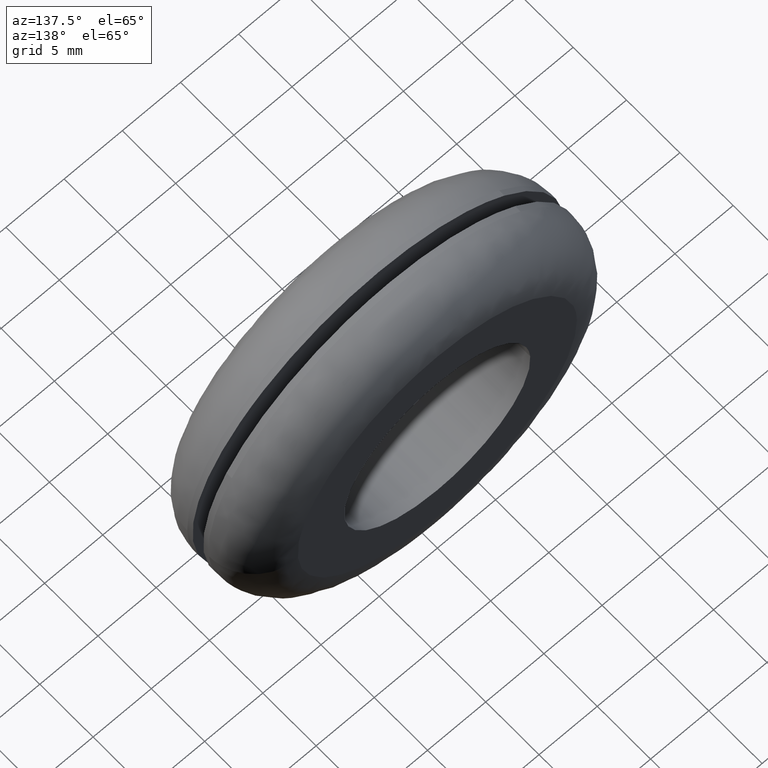
[diagram: clean part render]
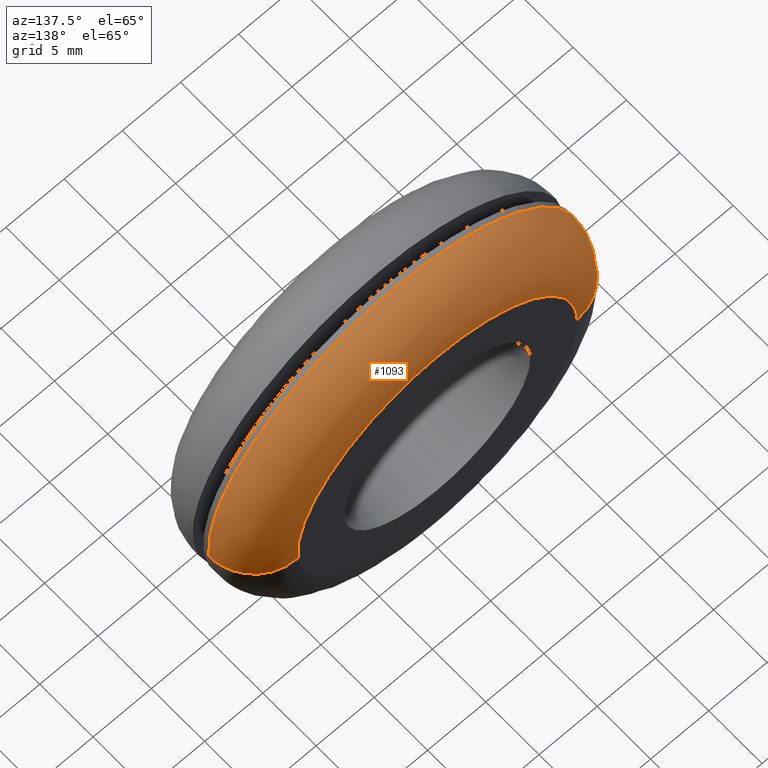
[diagram: same view with one face highlighted and labeled with its STEP entity id]
A machine part, auxiliary view. The second image highlights one B-rep face of the part: STEP entity #1093.
In plain terms, the highlighted face is a freeform B-spline surface patch.
Its self-contained STEP definition (entity closure, byte-faithful):
#464=CARTESIAN_POINT('',(13.999144271823431,6.000000000000282,7.747513127234091));
#465=VERTEX_POINT('',#464);
#466=CARTESIAN_POINT('',(0.0,6.0,16.0));
#467=VERTEX_POINT('',#466);
#468=CARTESIAN_POINT('',(13.999144271823427,6.000000000000281,7.747513127234091));
#469=CARTESIAN_POINT('',(9.431990084566193,6.000000000000001,16.000000000000007));
#470=CARTESIAN_POINT('',(0.0,6.0,16.0));
#478=(BOUNDED_CURVE()B_SPLINE_CURVE(2,(#468,#469,#470),.UNSPECIFIED.,.F.,.U.)B_SPLINE_CURVE_WITH_KNOTS((3,3),(0.332484260513294,0.500000000000000),.UNSPECIFIED.)CURVE()GEOMETRIC_REPRESENTATION_ITEM()RATIONAL_B_SPLINE_CURVE((0.870495160132448,0.803743103439292,1.0))REPRESENTATION_ITEM(''));
#479=EDGE_CURVE('',#465,#467,#478,.T.);
#481=CARTESIAN_POINT('',(-10.809442670793439,6.000000000009967,11.796437985544690));
#482=VERTEX_POINT('',#481);
#483=CARTESIAN_POINT('',(0.0,6.0,16.0));
#484=CARTESIAN_POINT('',(-6.222058693050388,6.0,16.000000000000007));
#485=CARTESIAN_POINT('',(-10.809442670793439,6.000000000009967,11.796437985544689));
#493=(BOUNDED_CURVE()B_SPLINE_CURVE(2,(#483,#484,#485),.UNSPECIFIED.,.F.,.U.)B_SPLINE_CURVE_WITH_KNOTS((3,3),(0.500000000000000,0.618415192420787),.UNSPECIFIED.)CURVE()GEOMETRIC_REPRESENTATION_ITEM()RATIONAL_B_SPLINE_CURVE((1.0,0.861267972541846,0.853959782894757))REPRESENTATION_ITEM(''));
#494=EDGE_CURVE('',#467,#482,#493,.T.);
#563=CARTESIAN_POINT('',(15.961050781446730,6.000000000037852,-1.115732025209768));
#564=VERTEX_POINT('',#563);
#565=CARTESIAN_POINT('',(15.961050781446728,6.000000000037852,-1.115732025209769));
#566=CARTESIAN_POINT('',(15.999999999999996,6.0,-0.558545853998097));
#567=CARTESIAN_POINT('',(16.0,6.0,-3.061516E-016));
#568=CARTESIAN_POINT('',(16.000000000000004,5.999999999999999,4.132124867047483));
#569=CARTESIAN_POINT('',(13.999144271823427,6.000000000000281,7.747513127234091));
#577=(BOUNDED_CURVE()B_SPLINE_CURVE(2,(#565,#566,#567,#568,#569),.UNSPECIFIED.,.F.,.U.)B_SPLINE_CURVE_WITH_KNOTS((3,2,3),(0.237833686535076,0.250000000000000,0.332484260513294),.UNSPECIFIED.)CURVE()GEOMETRIC_REPRESENTATION_ITEM()RATIONAL_B_SPLINE_CURVE((0.972879876386944,0.985746277152660,1.0,0.903363677747256,0.870495160132448))REPRESENTATION_ITEM(''));
#578=EDGE_CURVE('',#564,#465,#577,.T.);
#614=CARTESIAN_POINT('',(-15.998736707260949,6.000000000037799,0.201056638142445));
#615=VERTEX_POINT('',#614);
#616=CARTESIAN_POINT('',(-10.809442670793437,6.000000000009967,11.796437985544687));
#617=CARTESIAN_POINT('',(-15.911773376574466,6.000000000021244,7.121014335795461));
#618=CARTESIAN_POINT('',(-15.998736707260944,6.000000000037799,0.201056638142445));
#626=(BOUNDED_CURVE()B_SPLINE_CURVE(2,(#616,#617,#618),.UNSPECIFIED.,.F.,.U.)B_SPLINE_CURVE_WITH_KNOTS((3,3),(0.618415192420786,0.747784295921534),.UNSPECIFIED.)CURVE()GEOMETRIC_REPRESENTATION_ITEM()RATIONAL_B_SPLINE_CURVE((0.853959782894757,0.845975554490198,0.994854295643565))REPRESENTATION_ITEM(''));
#627=EDGE_CURVE('',#482,#615,#626,.T.);
#998=CARTESIAN_POINT('',(11.693316380241525,9.990317432725162,-0.817402149407789));
#999=CARTESIAN_POINT('',(11.716710056003423,9.990317432725163,-0.482744781331671));
#1000=CARTESIAN_POINT('',(11.720925635918164,9.990317432725162,-0.147297248982320));
#1001=CARTESIAN_POINT('',(11.868222884900479,9.990317432725160,11.573628386935839));
#1002=CARTESIAN_POINT('',(0.147297248982320,9.990317432725162,11.720925635918164));
#1003=CARTESIAN_POINT('',(-11.573628386935837,9.990317432725160,11.868222884900479));
#1004=CARTESIAN_POINT('',(-11.720925635918164,9.990317432725162,0.147297248982321));
#1005=CARTESIAN_POINT('',(16.270444540875179,10.310149059556245,-1.137358804556427));
#1006=CARTESIAN_POINT('',(16.302995229808410,10.310149059556245,-0.671706121398182));
#1007=CARTESIAN_POINT('',(16.308860918974773,10.310149059556247,-0.204953979064476));
#1008=CARTESIAN_POINT('',(16.513814898039247,10.310149059556247,16.103906939910292));
#1009=CARTESIAN_POINT('',(0.204953979064477,10.310149059556247,16.308860918974773));
#1010=CARTESIAN_POINT('',(-16.103906939910292,10.310149059556247,16.513814898039247));
#1011=CARTESIAN_POINT('',(-16.308860918974773,10.310149059556247,0.204953979064478));
#1012=CARTESIAN_POINT('',(15.951391869401117,5.721851477113928,-1.115055949578702));
#1013=CARTESIAN_POINT('',(15.983304260822779,5.721851477113929,-0.658534407992370));
#1014=CARTESIAN_POINT('',(15.989054927698641,5.721851477113929,-0.200934966898860));
#1015=CARTESIAN_POINT('',(16.189989894597499,5.721851477113927,15.788119960799783));
#1016=CARTESIAN_POINT('',(0.200934966898861,5.721851477113929,15.989054927698641));
#1017=CARTESIAN_POINT('',(-15.788119960799783,5.721851477113927,16.189989894597499));
#1018=CARTESIAN_POINT('',(-15.989054927698641,5.721851477113929,0.200934966898862));
#1026=(BOUNDED_SURFACE()B_SPLINE_SURFACE(2,2,((#998,#1005,#1012),(#999,#1006,#1013),(#1000,#1007,#1014),(#1001,#1008,#1015),(#1002,#1009,#1016),(#1003,#1010,#1017),(#1004,#1011,#1018)),.UNSPECIFIED.,.F.,.F.,.U.)B_SPLINE_SURFACE_WITH_KNOTS((3,2,2,3),(3,3),(0.0,1.059744006452956,27.553369434066969,54.046994861680993),(0.0,7.289496258937028),.UNSPECIFIED.)GEOMETRIC_REPRESENTATION_ITEM()RATIONAL_B_SPLINE_SURFACE(((0.895729780140252,0.587800196502176,0.895729746073599),(0.905606538263746,0.594281571236513,0.905606503821457),(0.916342144029433,0.601326543189608,0.916342109178844),(0.647951743930232,0.425202076396837,0.647951719287144),(0.916342144029433,0.601326543189608,0.916342109178844),(0.647951743930232,0.425202076396837,0.647951719287144),(0.916342144029433,0.601326543189608,0.916342109178844)))REPRESENTATION_ITEM('')SURFACE());
#1027=ORIENTED_EDGE('',*,*,#479,.F.);
#1028=ORIENTED_EDGE('',*,*,#578,.F.);
#1029=CARTESIAN_POINT('',(11.970788086532149,10.0,-0.836799019009194));
#1030=VERTEX_POINT('',#1029);
#1031=CARTESIAN_POINT('',(11.970788086532153,10.0,-0.836799019009194));
#1032=CARTESIAN_POINT('',(15.961050781371394,9.999999999093767,-1.115732025201785));
#1033=CARTESIAN_POINT('',(15.961050781446735,6.000000000037852,-1.115732025209768));
#1041=(BOUNDED_CURVE()B_SPLINE_CURVE(2,(#1031,#1032,#1033),.UNSPECIFIED.,.F.,.U.)B_SPLINE_CURVE_WITH_KNOTS((3,3),(-1.734750791422986,-0.265249208361265),.UNSPECIFIED.)CURVE()GEOMETRIC_REPRESENTATION_ITEM()RATIONAL_B_SPLINE_CURVE((0.869031711793707,0.614498216577333,0.869031711868447))REPRESENTATION_ITEM(''));
#1042=EDGE_CURVE('',#1030,#564,#1041,.T.);
#1043=ORIENTED_EDGE('',*,*,#1042,.F.);
#1044=CARTESIAN_POINT('',(0.0,10.0,12.0));
#1045=VERTEX_POINT('',#1044);
#1046=CARTESIAN_POINT('',(11.970788086532147,10.0,-0.836799019009194));
#1047=CARTESIAN_POINT('',(12.000000000000004,10.0,-0.418909390569100));
#1048=CARTESIAN_POINT('',(12.0,10.0,-3.061516E-016));
#1049=CARTESIAN_POINT('',(12.0,10.000000000000002,12.0));
#1050=CARTESIAN_POINT('',(0.0,10.0,12.0));
#1058=(BOUNDED_CURVE()B_SPLINE_CURVE(2,(#1046,#1047,#1048,#1049,#1050),.UNSPECIFIED.,.F.,.U.)B_SPLINE_CURVE_WITH_KNOTS((3,2,3),(0.237833686533057,0.250000000000000,0.500000000000000),.UNSPECIFIED.)CURVE()GEOMETRIC_REPRESENTATION_ITEM()RATIONAL_B_SPLINE_CURVE((0.972879876382673,0.985746277150295,1.0,0.707106781186548,1.0))REPRESENTATION_ITEM(''));
#1059=EDGE_CURVE('',#1030,#1045,#1058,.T.);
#1060=ORIENTED_EDGE('',*,*,#1059,.T.);
#1061=CARTESIAN_POINT('',(-11.999052530548489,10.0,0.150792478611095));
#1062=VERTEX_POINT('',#1061);
#1063=CARTESIAN_POINT('',(0.0,10.0,12.0));
#1064=CARTESIAN_POINT('',(-11.850143158868832,9.999999999999998,12.0));
#1065=CARTESIAN_POINT('',(-11.999052530548491,10.0,0.150792478611095));
#1073=(BOUNDED_CURVE()B_SPLINE_CURVE(2,(#1063,#1064,#1065),.UNSPECIFIED.,.F.,.U.)B_SPLINE_CURVE_WITH_KNOTS((3,3),(0.500000000000000,0.747784295921447),.UNSPECIFIED.)CURVE()GEOMETRIC_REPRESENTATION_ITEM()RATIONAL_B_SPLINE_CURVE((1.0,0.709702639984569,0.994854295643365))REPRESENTATION_ITEM(''));
#1074=EDGE_CURVE('',#1045,#1062,#1073,.T.);
#1075=ORIENTED_EDGE('',*,*,#1074,.T.);
#1076=CARTESIAN_POINT('',(-11.999052530548486,10.0,0.150792478611095));
#1077=CARTESIAN_POINT('',(-15.998736707185458,9.999999999794348,0.201056638132680));
#1078=CARTESIAN_POINT('',(-15.998736707260949,6.000000000037799,0.201056638142445));
#1086=(BOUNDED_CURVE()B_SPLINE_CURVE(2,(#1076,#1077,#1078),.UNSPECIFIED.,.F.,.U.)B_SPLINE_CURVE_WITH_KNOTS((3,3),(-1.734750791604979,-0.265249208361238),.UNSPECIFIED.)CURVE()GEOMETRIC_REPRESENTATION_ITEM()RATIONAL_B_SPLINE_CURVE((0.889029723557509,0.628638946230250,0.889029723569482))REPRESENTATION_ITEM(''));
#1087=EDGE_CURVE('',#1062,#615,#1086,.T.);
#1088=ORIENTED_EDGE('',*,*,#1087,.T.);
#1089=ORIENTED_EDGE('',*,*,#627,.F.);
#1090=ORIENTED_EDGE('',*,*,#494,.F.);
#1091=EDGE_LOOP('',(#1027,#1028,#1043,#1060,#1075,#1088,#1089,#1090));
#1092=FACE_OUTER_BOUND('',#1091,.T.);
#1093=ADVANCED_FACE('',(#1092),#1026,.T.);